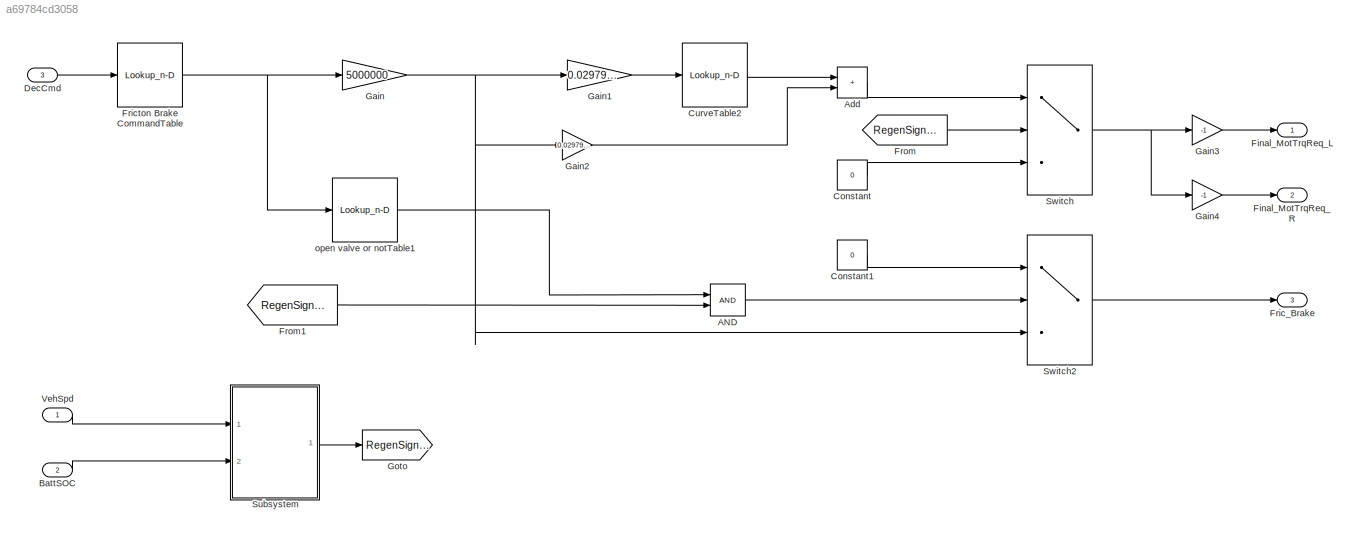
MODEL slx_a69784cd3058
KIND model
CONFIG AbsTol = auto
CONFIG EnableMultiTasking = off
CONFIG FixedStep = auto
CONFIG MaxStep = auto
CONFIG MinStep = auto
CONFIG RelTol = 1e-3
CONFIG SampleTimeConstraint = Unconstrained
CONFIG Solver = VariableStepAuto
CONFIG SolverName = VariableStepAuto
CONFIG StartTime = 0.0
CONFIG StopTime = 10.0
WORKSPACE source: mxarray member
WORKSPACE Batt: object (value not decoded)
BLOCK [Logic] AND
  AllPortsSameDT = off
  IconShape = distinctive
  OutDataTypeStr = boolean
  Ports = [2, 1]
BLOCK [Sum] Add
  IconShape = rectangular
  Ports = [2, 1]
BLOCK [Inport] BattSOC
  Port = 2
BLOCK [Constant] Constant
  Value = 0
BLOCK [Constant] Constant1
  Value = 0
BLOCK [Lookup_n-D] CurveTable2
  BreakpointsForDimension1 = Batt.Limit.SOC
  InternalRulePriority = Speed
  NumberOfTableDimensions = 1
  Ports = [1, 1]
  RndMeth = Simplest
  Table = Batt.Limit.Charge
BLOCK [Inport] DecCmd
  Port = 3
BLOCK [Outport] Final_MotTrqReq_L
BLOCK [Outport] Final_MotTrqReq_R
  Port = 2
BLOCK [Outport] Fric_Brake
  Port = 3
BLOCK [Lookup_n-D] Fricton Brake CommandTable
  BreakpointsForDimension1 = [.0 0.1 0.2 0.4 0.6 0.8 1.0]
  InternalRulePriority = Speed
  NumberOfTableDimensions = 1
  Ports = [1, 1]
  RndMeth = Simplest
  Table = [0 0 0.2 0.4 0.6 0.8 1.0]*60
BLOCK [From] From
  GotoTag = RegenSignal
BLOCK [From] From1
  GotoTag = RegenSignal
BLOCK [Gain] Gain
  Gain = 5000000
BLOCK [Gain] Gain1
  Gain = 0.0297999215999
BLOCK [Gain] Gain2
  Gain = 0.0297999215999
BLOCK [Gain] Gain3
  Gain = -1
BLOCK [Gain] Gain4
  Gain = -1
BLOCK [Goto] Goto
  GotoTag = RegenSignal
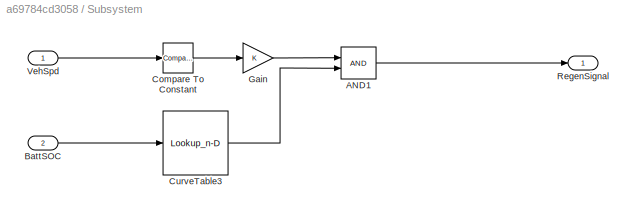
BLOCK [SubSystem] Subsystem
  Ports = [2, 1]
  RequestExecContextInheritance = off
BLOCK [Logic] Subsystem/AND1
  AllPortsSameDT = off
  IconShape = distinctive
  OutDataTypeStr = boolean
  Ports = [2, 1]
BLOCK [Inport] Subsystem/BattSOC
  Port = 2
BLOCK [Reference] Subsystem/Compare To Constant  REF=simulink/Logic and Bit
Operations/Compare
To Constant
  Ports = [1, 1]
  SourceBlock = simulink/Logic and Bit\nOperations/Compare\nTo Constant
  SourceProductBaseCode = SL
  SourceType = Compare To Constant
BLOCK [Lookup_n-D] Subsystem/CurveTable3
  BreakpointsForDimension1 = Batt.Limit.SOC
  InternalRulePriority = Speed
  NumberOfTableDimensions = 1
  Ports = [1, 1]
  RndMeth = Simplest
  Table = Batt.Limit.Charge
BLOCK [Gain] Subsystem/Gain
BLOCK [Outport] Subsystem/RegenSignal
BLOCK [Inport] Subsystem/VehSpd
BLOCK [Switch] Switch
  Criteria = u2 > Threshold
  InputSameDT = off
  SaturateOnIntegerOverflow = off
BLOCK [Switch] Switch2
  Criteria = u2 > Threshold
  InputSameDT = off
  SaturateOnIntegerOverflow = off
BLOCK [Inport] VehSpd
BLOCK [Lookup_n-D] open valve or notTable1
  BreakpointsForDimension1 = [.0 0.1 0.2 0.4 0.6 0.8 1.0]
  InternalRulePriority = Speed
  NumberOfTableDimensions = 1
  Ports = [1, 1]
  RndMeth = Simplest
  Table = [0 0 0.2 0.4 0.6 0.8 1.0]*60
LINE AND:1 -> Switch2:2
LINE Add:1 -> Switch:1
LINE BattSOC:1 -> Subsystem:2
LINE Constant1:1 -> Switch2:1
LINE Constant:1 -> Switch:3
LINE CurveTable2:1 -> Add:1
LINE DecCmd:1 -> Fricton Brake CommandTable:1
NET Fricton Brake CommandTable:1 -> Gain:1, open valve or notTable1:1
LINE From1:1 -> AND:2
LINE From:1 -> Switch:2
LINE Gain1:1 -> CurveTable2:1
LINE Gain2:1 -> Add:2
LINE Gain3:1 -> Final_MotTrqReq_L:1
LINE Gain4:1 -> Final_MotTrqReq_R:1
NET Gain:1 -> Gain1:1, Gain2:1, Switch2:3
LINE Subsystem/AND1:1 -> Subsystem/RegenSignal:1
LINE Subsystem/BattSOC:1 -> Subsystem/CurveTable3:1
LINE Subsystem/Compare To Constant:1 -> Subsystem/Gain:1
LINE Subsystem/CurveTable3:1 -> Subsystem/AND1:2
LINE Subsystem/Gain:1 -> Subsystem/AND1:1
LINE Subsystem/VehSpd:1 -> Subsystem/Compare To Constant:1
LINE Subsystem:1 -> Goto:1
LINE Switch2:1 -> Fric_Brake:1
NET Switch:1 -> Gain3:1, Gain4:1
LINE VehSpd:1 -> Subsystem:1
LINE open valve or notTable1:1 -> AND:1
note: NET lines group one-source signal fan-out (src -> all destinations, sorted); 1:1 wires keep LINE
